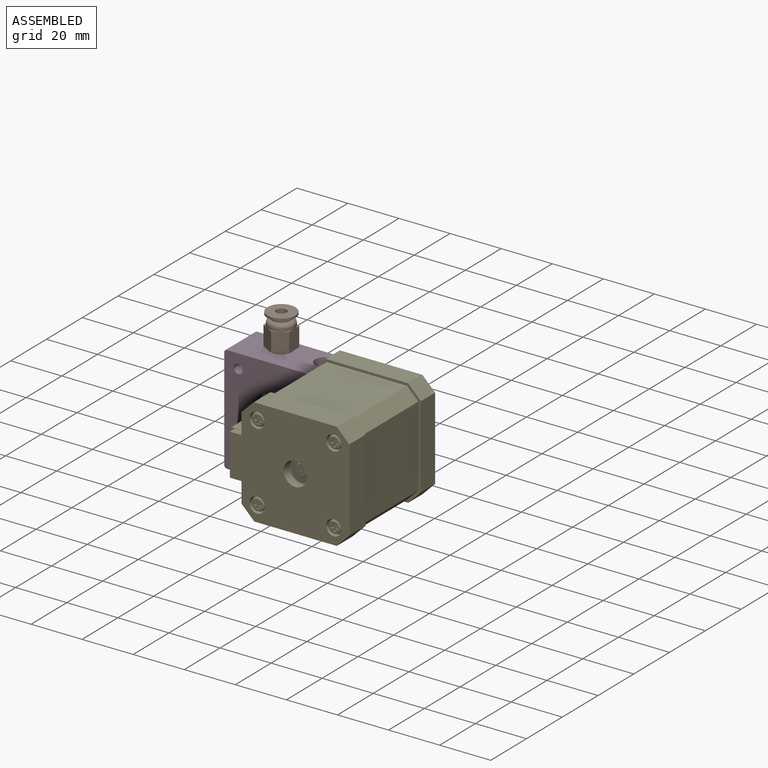
[diagram: assembled view]
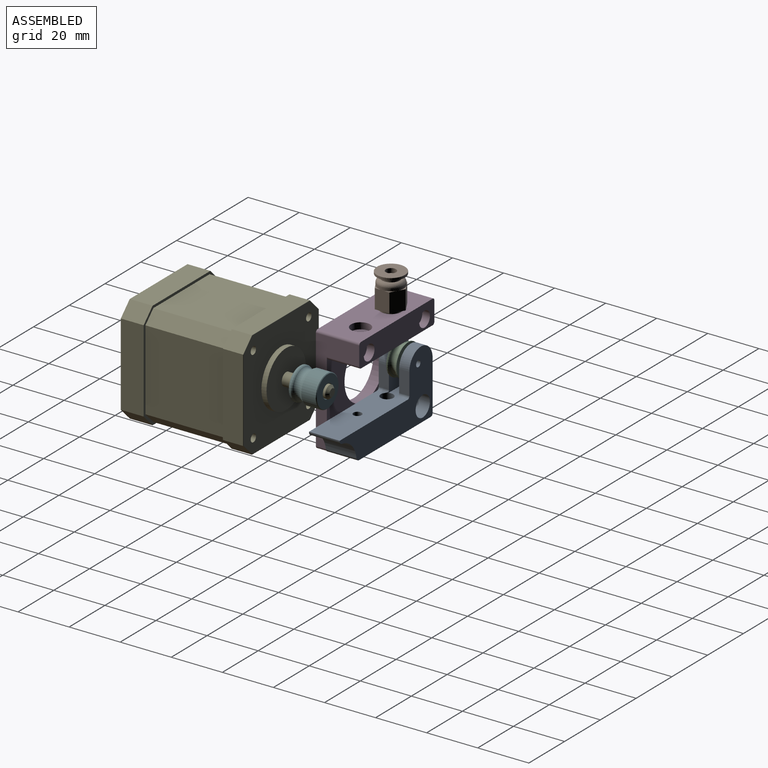
[diagram: assembled view, second angle]
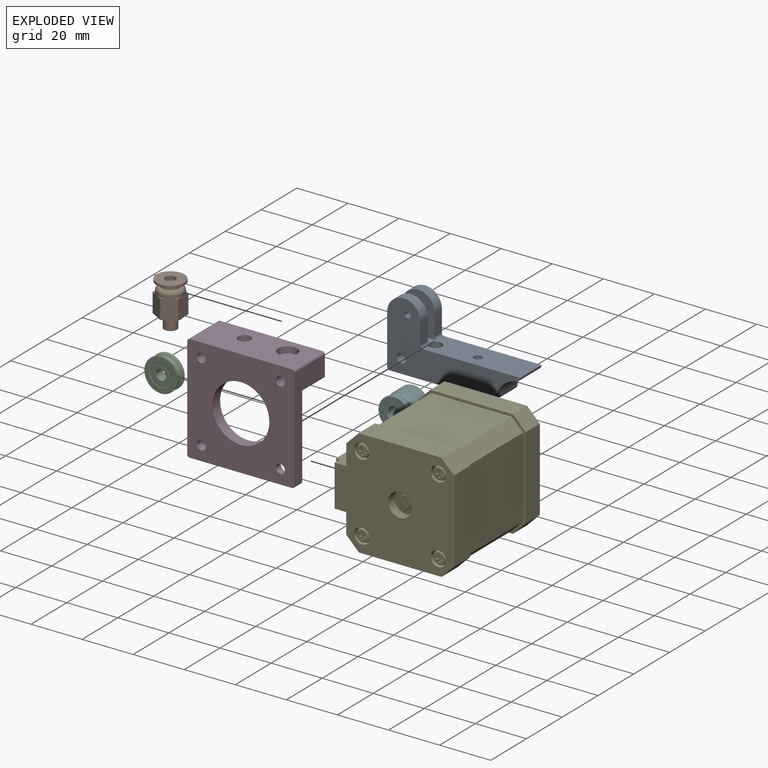
[diagram: exploded view]
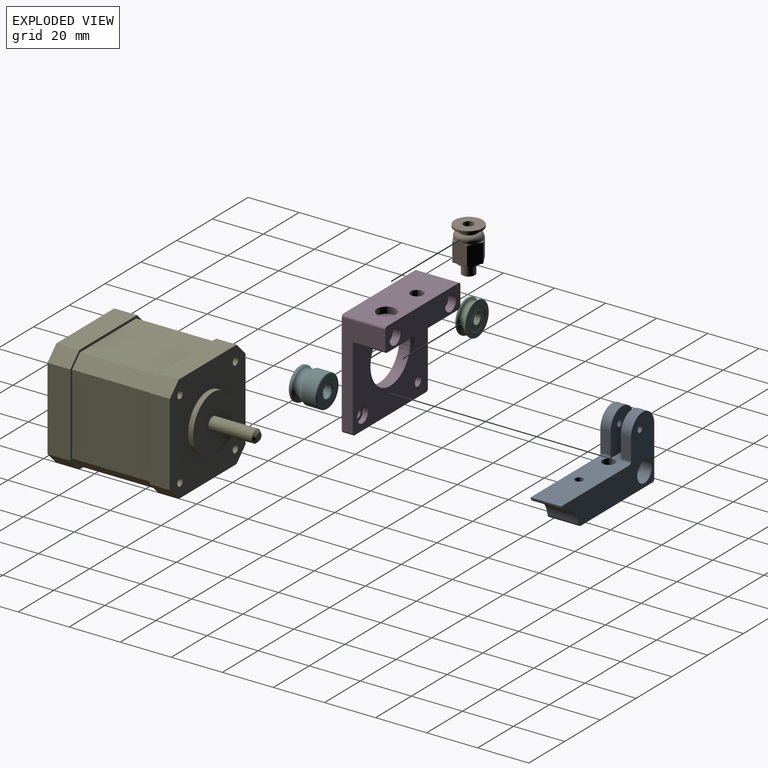
[diagram: exploded view, second angle]
ASSEMBLY  parts=6 mates=4
PART A: 25 faces, bbox 52x12x27.1 mm
  f0: cylinder r=4mm len=8mm, axis (0,1,0), area 163.4mm2, adj f3,f5
  f1: plane 8.5x4mm, normal (1,0,0), area 34mm2, adj f4,f5,f6,f7
  f2: cylinder r=1.23mm len=4mm, axis (0,-1,0), area 30.9mm2, adj f5,f7
  f3: plane 8.15x8.07mm, normal (0,-1,0), area 40.6mm2, adj f0,f9
  f4: cylinder r=6.5mm len=13mm, axis (0,1,0), area 81.7mm2, adj f1,f5,f7,f16
  f5: plane 52x27.12mm, normal (0,-1,0), area 635.2mm2, adj f0,f1,f2,f4,f6,f10,f11,f12
  f6: cylinder r=1mm len=4mm, axis (0,1,0), area 6.3mm2, adj f1,f5,f7,f20
  f7: plane 16.12x14mm, normal (0,1,0), area 185.3mm2, adj f1,f2,f4,f6,f16,f20
  f8: cylinder r=1.62mm len=11mm, axis (0,0,-1), area 112mm2, adj f11,f20
  f9: cylinder r=1.75mm len=5.5mm, axis (0,1,0), area 60.5mm2, adj f3,f21
  f10: cylinder r=1mm len=12mm, axis (0,1,0), area 18.8mm2, adj f5,f11,f16,f21
  f11: plane 40.1x12mm, normal (0,0,1), area 454mm2, adj f5,f8,f10,f12,f19,f21
  f12: cylinder r=1.5mm len=12mm, axis (0,1,0), area 25.8mm2, adj f5,f11,f13,f21
  f13: cylinder r=9.5mm len=12mm, axis (0,1,0), area 147.9mm2, adj f5,f12,f14,f21
  f14: cylinder r=1.5mm len=12mm, axis (0,-1,0), area 25.8mm2, adj f5,f13,f15,f21
  f15: plane 12x0.1mm, normal (1,0,0), area 1.2mm2, adj f5,f14,f20,f21
  f16: plane 19.5x12mm, normal (-1,0,0), area 196mm2, adj f4,f5,f7,f10,f17,f20,f21,f23
  f17: cylinder r=6.5mm len=13mm, axis (0,1,0), area 81.7mm2, adj f16,f21,f22,f23
  f18: cylinder r=1.23mm len=4mm, axis (0,-1,0), area 30.9mm2, adj f21,f23
  f19: cylinder r=2.46mm len=11.33mm, axis (0,0,-1), area 170.1mm2, adj f11,f20,f23,f24
  f20: plane 52x12mm, normal (0,0,-1), area 485.2mm2, adj f5,f6,f7,f8,f15,f16,f19,f21
  f21: plane 52x27.12mm, normal (0,1,0), area 675.8mm2, adj f9,f10,f11,f12,f13,f14,f15,f16
  f22: plane 8.5x4mm, normal (1,0,0), area 34mm2, adj f17,f21,f23,f24
  f23: plane 16.12x13.25mm, normal (0,-1,0), area 185.3mm2, adj f16,f17,f18,f19,f20,f22,f24
  f24: cylinder r=1mm len=4mm, axis (0,1,0), area 5.9mm2, adj f19,f20,f21,f22,f23
PART B: 37 faces, bbox 11.9x11.9x17.5 mm
  f0: plane 4.07x4mm, normal (0,0,1), area 12.6mm2, adj f1
  f1: cylinder r=2mm len=4mm, axis (0,0,-1), area 22mm2, adj f0,f2
  f2: plane 11x10.9mm, normal (0,0,1), area 79mm2, adj f1,f3
  f3: torus R=5.4mm, axis (0,0,1), area 5.4mm2, adj f2,f4
  f4: cylinder r=5.5mm len=11mm, axis (0,0,1), area 27.6mm2, adj f3,f5
  f5: torus R=5.4mm, axis (0,0,-1), area 5.4mm2, adj f4,f6
  f6: plane 11x10.8mm, normal (0,0,-1), area 72mm2, adj f5,f7
  f7: cylinder r=2.5mm len=5mm, axis (0,0,1), area 11.8mm2, adj f6,f8
  f8: plane 7.13x7mm, normal (0,0,1), area 18.8mm2, adj f7,f9
  f9: cylinder r=3.5mm len=7mm, axis (0,0,1), area 16.5mm2, adj f8,f10
  f10: torus R=3.5mm, axis (0,0,1), area 66mm2, adj f9,f11
  f11: cylinder r=5mm len=10mm, axis (0,0,1), area 31.4mm2, adj f10,f12,f13,f14,f15,f16,f17
  f12: plane 5x1.41mm, normal (0,0,1), area 1.3mm2, adj f11,f18,f19,f20
  f13: plane 4.33x2.5mm, normal (0,0,1), area 1.3mm2, adj f11,f20,f21,f22
  f14: plane 4.33x2.5mm, normal (0,0,1), area 1.3mm2, adj f11,f22,f23,f24
  f15: plane 5x1.41mm, normal (0,0,1), area 1.3mm2, adj f11,f24,f25,f26
  f16: plane 4.33x2.5mm, normal (0,0,1), area 1.3mm2, adj f11,f26,f27,f28
  f17: plane 4.33x2.5mm, normal (0,0,1), area 1.3mm2, adj f11,f18,f28,f29
  f18: plane 7.5x4.8mm, normal (-0.5,-0.87,0), area 41.6mm2, adj f12,f17,f19,f29,f30
  f19: cylinder r=0.2mm len=7.5mm, axis (0,0,1), area 1.6mm2, adj f12,f18,f20,f30
  f20: plane 7.5x4.8mm, normal (0.5,-0.87,0), area 41.6mm2, adj f12,f13,f19,f21,f30
  f21: cylinder r=0.2mm len=7.5mm, axis (0,0,1), area 1.6mm2, adj f13,f20,f22,f30
  f22: plane 7.5x5.54mm, normal (1,0,0), area 41.6mm2, adj f13,f14,f21,f23,f30
  f23: cylinder r=0.2mm len=7.5mm, axis (0,0,1), area 1.6mm2, adj f14,f22,f24,f30
  f24: plane 7.5x4.8mm, normal (0.5,0.87,0), area 41.6mm2, adj f14,f15,f23,f25,f30
  f25: cylinder r=0.2mm len=7.5mm, axis (0,0,1), area 1.6mm2, adj f15,f24,f26,f30
  f26: plane 7.5x4.8mm, normal (-0.5,0.87,0), area 41.6mm2, adj f15,f16,f25,f27,f30
  f27: cylinder r=0.2mm len=7.5mm, axis (0,0,1), area 1.6mm2, adj f16,f26,f28,f30
  f28: plane 7.5x5.54mm, normal (-1,0,0), area 41.6mm2, adj f16,f17,f27,f29,f30
  f29: cylinder r=0.2mm len=7.5mm, axis (0,0,1), area 1.6mm2, adj f17,f18,f28,f30
  f30: plane 11.49x10mm, normal (0,0,-1), area 36.3mm2, adj f18,f19,f20,f21,f22,f23,f24,f25
  f31: cylinder r=4mm len=8mm, axis (0,0,-1), area 25.1mm2, adj f30,f32
  f32: plane 8.15x8.07mm, normal (0,0,-1), area 30.6mm2, adj f31,f33
  f33: cylinder r=2.5mm len=5mm, axis (0,0,-1), area 62.8mm2, adj f32,f34
  f34: plane 5.09x5.05mm, normal (0,0,-1), area 7.1mm2, adj f33,f35
  f35: cylinder r=2mm len=15mm, axis (0,0,-1), area 188.5mm2, adj f34,f36
  f36: plane 4.07x4mm, normal (0,0,-1), area 12.6mm2, adj f35
PART C: 16 faces, bbox 14.1x4x14.1 mm
  f0: plane 6.11x6mm, normal (0,-1,0), area 15.7mm2, adj f1,f2
  f1: cylinder r=2mm len=4mm, axis (0,-1,0), area 50.3mm2, adj f0,f3
  f2: cylinder r=3mm len=6mm, axis (0,1,0), area 1.9mm2, adj f0,f4
  f3: plane 6.11x6mm, normal (0,1,0), area 15.7mm2, adj f1,f5
  f4: plane 8.66x8.58mm, normal (0,-1,0), area 28.5mm2, adj f2,f6
  f5: cylinder r=3mm len=6mm, axis (0,-1,0), area 1.9mm2, adj f3,f7
  f6: torus R=4.55mm, axis (0,-1,0), area 8.9mm2, adj f4,f8
  f7: plane 8.66x8.5mm, normal (0,1,0), area 28.5mm2, adj f5,f9
  f8: plane 13.24x13.12mm, normal (0,-1,0), area 67.7mm2, adj f6,f10
  f9: torus R=4.55mm, axis (0,1,0), area 8.9mm2, adj f7,f11
  f10: cylinder r=6.5mm len=13mm, axis (0,1,0), area 13.2mm2, adj f8,f12
  f11: plane 13.24x13.12mm, normal (0,1,0), area 67.7mm2, adj f9,f13
  f12: torus R=6mm, axis (0,-1,0), area 25.7mm2, adj f10,f14
  f13: cylinder r=6.5mm len=13mm, axis (0,-1,0), area 13.2mm2, adj f11,f15
  f14: torus R=6.5mm, axis (0,-1,0), area 112mm2, adj f12,f15
  f15: torus R=6mm, axis (0,-1,0), area 25.7mm2, adj f13,f14
PART D: 29 faces, bbox 42x42x17 mm
  f0: plane 7.64x7.57mm, normal (0,1,0), area 35.9mm2, adj f1,f7
  f1: cylinder r=1.62mm len=6.9mm, axis (0,-1,0), area 70.3mm2, adj f0,f10
  f2: cylinder r=3mm len=6mm, axis (0,0,-1), area 56.5mm2, adj f6,f13
  f3: cylinder r=3mm len=6mm, axis (0,0,-1), area 56.5mm2, adj f5,f13
  f4: plane 6.11x6.06mm, normal (0,0,1), area 18.7mm2, adj f11,f15
  f5: plane 6.11x6.06mm, normal (0,0,1), area 18.7mm2, adj f3,f16
  f6: plane 6.11x6.06mm, normal (0,0,1), area 18.7mm2, adj f2,f17
  f7: cylinder r=3.75mm len=7.5mm, axis (0,-1,0), area 58.9mm2, adj f0,f21
  f8: cylinder r=2.46mm len=9.4mm, axis (0,-1,0), area 145.2mm2, adj f10,f21
  f9: cylinder r=1mm len=12.7mm, axis (0,0,1), area 19.9mm2, adj f10,f13,f19,f24
  f10: plane 40x12.7mm, normal (0,-1,0), area 480.8mm2, adj f1,f8,f9,f12,f13,f24
  f11: cylinder r=3mm len=6mm, axis (0,0,-1), area 37.7mm2, adj f4,f24
  f12: cylinder r=1mm len=12.7mm, axis (0,0,1), area 19.9mm2, adj f10,f13,f24,f25
  f13: plane 42x9.4mm, normal (0,0,1), area 337.4mm2, adj f2,f3,f9,f10,f12,f19,f20,f21
  f14: cylinder r=1.75mm len=4.3mm, axis (0,0,-1), area 47.3mm2, adj f24,f26
  f15: cylinder r=1.75mm len=3.5mm, axis (0,0,-1), area 25.3mm2, adj f4,f26
  f16: cylinder r=1.75mm len=14mm, axis (0,0,-1), area 153.9mm2, adj f5,f26
  f17: cylinder r=1.75mm len=14mm, axis (0,0,-1), area 153.9mm2, adj f6,f26
  f18: cylinder r=11.15mm len=22.3mm, axis (0,0,-1), area 301.2mm2, adj f24,f26
  f19: plane 40x17mm, normal (1,0,0), area 266mm2, adj f9,f13,f20,f23,f24,f26
  f20: cylinder r=1mm len=17mm, axis (0,0,1), area 26.7mm2, adj f13,f19,f21,f26
  f21: plane 40x17mm, normal (0,1,0), area 616.8mm2, adj f7,f8,f13,f20,f22,f26
  f22: cylinder r=1mm len=17mm, axis (0,0,1), area 26.7mm2, adj f13,f21,f25,f26
  f23: cylinder r=1mm len=4.3mm, axis (0,0,1), area 6.8mm2, adj f19,f24,f26,f27
  f24: plane 42x33.6mm, normal (0,0,1), area 940.7mm2, adj f9,f10,f11,f12,f14,f18,f19,f23
  f25: plane 40x17mm, normal (-1,0,0), area 266mm2, adj f12,f13,f22,f24,f26,f28
  f26: plane 42x42mm, normal (0,0,-1), area 1334.1mm2, adj f14,f15,f16,f17,f18,f19,f20,f21
  f27: plane 40x4.3mm, normal (0,-1,0), area 172mm2, adj f23,f24,f26,f28
  f28: cylinder r=1mm len=4.3mm, axis (0,0,1), area 6.8mm2, adj f24,f25,f26,f27
PART E: 226 faces, bbox 48.7x42.7x68.4 mm
  f0: plane 3x3mm, normal (0,0,-1), area 5mm2, adj f5,f6,f7,f8,f9,f10,f11,f12
  f1: plane 3x3mm, normal (0,0,-1), area 5mm2, adj f17,f18,f19,f20,f21,f22,f23,f24
  f2: plane 3x3mm, normal (0,0,-1), area 5mm2, adj f29,f30,f31,f32,f33,f34,f35,f36
  f3: plane 3x3mm, normal (0,0,-1), area 5mm2, adj f41,f42,f43,f44,f45,f46,f47,f48
  f4: plane 0.58x0.57mm, normal (0,0,-1), area 0.3mm2, adj f53
  f5: plane 1x0.6mm, normal (-1,0,0), area 0.6mm2, adj f0,f6,f16,f54
  f6: plane 1x0.6mm, normal (0,1,0), area 0.6mm2, adj f0,f5,f7,f54
  f7: plane 1x0.6mm, normal (1,0,0), area 0.6mm2, adj f0,f6,f8,f54
  f8: plane 1x0.6mm, normal (0,1,0), area 0.6mm2, adj f0,f7,f9,f54
  f9: plane 1x0.6mm, normal (1,0,0), area 0.6mm2, adj f0,f8,f10,f54
  f10: plane 1x0.6mm, normal (0,-1,0), area 0.6mm2, adj f0,f9,f11,f54
  f11: plane 1x0.6mm, normal (1,0,0), area 0.6mm2, adj f0,f10,f12,f54
  f12: plane 1x0.6mm, normal (0,-1,0), area 0.6mm2, adj f0,f11,f13,f54
  f13: plane 1x0.6mm, normal (-1,0,0), area 0.6mm2, adj f0,f12,f14,f54
  f14: plane 1x0.6mm, normal (0,-1,0), area 0.6mm2, adj f0,f13,f15,f54
  f15: plane 1x0.6mm, normal (-1,0,0), area 0.6mm2, adj f0,f14,f16,f54
  f16: plane 1x0.6mm, normal (0,1,0), area 0.6mm2, adj f0,f5,f15,f54
  f17: plane 1x0.6mm, normal (1,0,0), area 0.6mm2, adj f1,f18,f28,f55
  f18: plane 1x0.6mm, normal (0,-1,0), area 0.6mm2, adj f1,f17,f19,f55
  f19: plane 1x0.6mm, normal (1,0,0), area 0.6mm2, adj f1,f18,f20,f55
  f20: plane 1x0.6mm, normal (0,-1,0), area 0.6mm2, adj f1,f19,f21,f55
  f21: plane 1x0.6mm, normal (-1,0,0), area 0.6mm2, adj f1,f20,f22,f55
  f22: plane 1x0.6mm, normal (0,-1,0), area 0.6mm2, adj f1,f21,f23,f55
  f23: plane 1x0.6mm, normal (-1,0,0), area 0.6mm2, adj f1,f22,f24,f55
  f24: plane 1x0.6mm, normal (0,1,0), area 0.6mm2, adj f1,f23,f25,f55
  f25: plane 1x0.6mm, normal (-1,0,0), area 0.6mm2, adj f1,f24,f26,f55
  f26: plane 1x0.6mm, normal (0,1,0), area 0.6mm2, adj f1,f25,f27,f55
  f27: plane 1x0.6mm, normal (1,0,0), area 0.6mm2, adj f1,f26,f28,f55
  f28: plane 1x0.6mm, normal (0,1,0), area 0.6mm2, adj f1,f17,f27,f55
  f29: plane 1x0.6mm, normal (-1,0,0), area 0.6mm2, adj f2,f30,f40,f56
  f30: plane 1x0.6mm, normal (0,1,0), area 0.6mm2, adj f2,f29,f31,f56
  f31: plane 1x0.6mm, normal (-1,0,0), area 0.6mm2, adj f2,f30,f32,f56
  f32: plane 1x0.6mm, normal (0,1,0), area 0.6mm2, adj f2,f31,f33,f56
  f33: plane 1x0.6mm, normal (1,0,0), area 0.6mm2, adj f2,f32,f34,f56
  f34: plane 1x0.6mm, normal (0,1,0), area 0.6mm2, adj f2,f33,f35,f56
  f35: plane 1x0.6mm, normal (1,0,0), area 0.6mm2, adj f2,f34,f36,f56
  f36: plane 1x0.6mm, normal (0,-1,0), area 0.6mm2, adj f2,f35,f37,f56
  f37: plane 1x0.6mm, normal (1,0,0), area 0.6mm2, adj f2,f36,f38,f56
  f38: plane 1x0.6mm, normal (0,-1,0), area 0.6mm2, adj f2,f37,f39,f56
  f39: plane 1x0.6mm, normal (-1,0,0), area 0.6mm2, adj f2,f38,f40,f56
  f40: plane 1x0.6mm, normal (0,-1,0), area 0.6mm2, adj f2,f29,f39,f56
  f41: plane 1x0.6mm, normal (1,0,0), area 0.6mm2, adj f3,f42,f52,f57
  f42: plane 1x0.6mm, normal (0,-1,0), area 0.6mm2, adj f3,f41,f43,f57
  f43: plane 1x0.6mm, normal (-1,0,0), area 0.6mm2, adj f3,f42,f44,f57
  f44: plane 1x0.6mm, normal (0,-1,0), area 0.6mm2, adj f3,f43,f45,f57
  f45: plane 1x0.6mm, normal (-1,0,0), area 0.6mm2, adj f3,f44,f46,f57
  f46: plane 1x0.6mm, normal (0,1,0), area 0.6mm2, adj f3,f45,f47,f57
  f47: plane 1x0.6mm, normal (-1,0,0), area 0.6mm2, adj f3,f46,f48,f57
  f48: plane 1x0.6mm, normal (0,1,0), area 0.6mm2, adj f3,f47,f49,f57
  f49: plane 1x0.6mm, normal (1,0,0), area 0.6mm2, adj f3,f48,f50,f57
  f50: plane 1x0.6mm, normal (0,1,0), area 0.6mm2, adj f3,f49,f51,f57
  f51: plane 1x0.6mm, normal (1,0,0), area 0.6mm2, adj f3,f50,f52,f57
  f52: plane 1x0.6mm, normal (0,-1,0), area 0.6mm2, adj f3,f41,f51,f57
  f53: cylinder r=0.28mm len=0.6mm, axis (0,0,-1), area 1.1mm2, adj f4,f58
  f54: plane 3.97x3.9mm, normal (0,0,-1), area 6.9mm2, adj f5,f6,f7,f8,f9,f10,f11,f12
  f55: plane 3.97x3.9mm, normal (0,0,-1), area 6.9mm2, adj f17,f18,f19,f20,f21,f22,f23,f24
  f56: plane 3.97x3.94mm, normal (0,0,-1), area 6.9mm2, adj f29,f30,f31,f32,f33,f34,f35,f36
  f57: plane 3.97x3.94mm, normal (0,0,-1), area 6.9mm2, adj f41,f42,f43,f44,f45,f46,f47,f48
  f58: plane 4.69x4.6mm, normal (0,0,-1), area 16.4mm2, adj f53,f63
  f59: torus R=1.95mm, axis (0,0,-1), area 11.2mm2, adj f54,f70
  f60: torus R=1.95mm, axis (0,0,1), area 11.2mm2, adj f55,f71
  f61: torus R=1.95mm, axis (0,0,1), area 11.2mm2, adj f56,f72
  f62: torus R=1.95mm, axis (0,0,-1), area 11.2mm2, adj f57,f73
  f63: cone r=2.4mm half-angle=45deg, axis (0,0,1), area 4.3mm2, adj f58,f74
  f64: plane 0.34x0.34mm, normal (-1,0,0), area 0.1mm2, adj f75,f76,f77,f78
  f65: plane 0.34x0.34mm, normal (-1,0,0), area 0.1mm2, adj f79,f80,f81,f82
  f66: plane 0.34x0.34mm, normal (-1,0,0), area 0.1mm2, adj f83,f84,f85,f86
  f67: plane 0.34x0.34mm, normal (-1,0,0), area 0.1mm2, adj f87,f88,f89,f90
  f68: plane 0.34x0.34mm, normal (-1,0,0), area 0.1mm2, adj f91,f92,f93,f94
  f69: plane 0.34x0.34mm, normal (-1,0,0), area 0.1mm2, adj f95,f96,f97,f98
  f70: cylinder r=2.45mm len=4.9mm, axis (0,0,-1), area 18.5mm2, adj f59,f99
  f71: cylinder r=2.45mm len=4.9mm, axis (0,0,-1), area 18.5mm2, adj f60,f100
  f72: cylinder r=2.45mm len=4.9mm, axis (0,0,-1), area 18.5mm2, adj f61,f101
  f73: cylinder r=2.45mm len=4.9mm, axis (0,0,-1), area 18.5mm2, adj f62,f102
  f74: cylinder r=2.5mm len=5mm, axis (0,0,-1), area 6.3mm2, adj f63,f103
  f75: plane 0.5x0.22mm, normal (-0.34,0,-0.94), area 0.1mm2, adj f64,f76,f78,f104
  f76: plane 0.5x0.22mm, normal (-0.34,-0.94,0), area 0.1mm2, adj f64,f75,f77,f105
  f77: plane 0.5x0.22mm, normal (-0.34,0,0.94), area 0.1mm2, adj f64,f76,f78,f106
  f78: plane 0.5x0.22mm, normal (-0.34,0.94,0), area 0.1mm2, adj f64,f75,f77,f107
  f79: plane 0.5x0.22mm, normal (-0.34,0,-0.94), area 0.1mm2, adj f65,f80,f82,f108
  f80: plane 0.5x0.22mm, normal (-0.34,-0.94,0), area 0.1mm2, adj f65,f79,f81,f109
  f81: plane 0.5x0.22mm, normal (-0.34,0,0.94), area 0.1mm2, adj f65,f80,f82,f110
  f82: plane 0.5x0.22mm, normal (-0.34,0.94,0), area 0.1mm2, adj f65,f79,f81,f111
  f83: plane 0.5x0.22mm, normal (-0.34,0,-0.94), area 0.1mm2, adj f66,f84,f86,f112
  f84: plane 0.5x0.22mm, normal (-0.34,-0.94,0), area 0.1mm2, adj f66,f83,f85,f113
  f85: plane 0.5x0.22mm, normal (-0.34,0,0.94), area 0.1mm2, adj f66,f84,f86,f114
  f86: plane 0.5x0.22mm, normal (-0.34,0.94,0), area 0.1mm2, adj f66,f83,f85,f115
  f87: plane 0.5x0.22mm, normal (-0.34,0,0.94), area 0.1mm2, adj f67,f88,f90,f116
  f88: plane 0.5x0.22mm, normal (-0.34,0.94,0), area 0.1mm2, adj f67,f87,f89,f117
  f89: plane 0.5x0.22mm, normal (-0.34,0,-0.94), area 0.1mm2, adj f67,f88,f90,f118
  f90: plane 0.5x0.22mm, normal (-0.34,-0.94,0), area 0.1mm2, adj f67,f87,f89,f119
  f91: plane 0.5x0.22mm, normal (-0.34,0,0.94), area 0.1mm2, adj f68,f92,f94,f120
  f92: plane 0.5x0.22mm, normal (-0.34,0.94,0), area 0.1mm2, adj f68,f91,f93,f121
  f93: plane 0.5x0.22mm, normal (-0.34,0,-0.94), area 0.1mm2, adj f68,f92,f94,f122
  f94: plane 0.5x0.22mm, normal (-0.34,-0.94,0), area 0.1mm2, adj f68,f91,f93,f123
  f95: plane 0.5x0.22mm, normal (-0.34,-0.94,0), area 0.1mm2, adj f69,f96,f98,f124
  f96: plane 0.5x0.22mm, normal (-0.34,0,0.94), area 0.1mm2, adj f69,f95,f97,f125
  f97: plane 0.5x0.22mm, normal (-0.34,0.94,0), area 0.1mm2, adj f69,f96,f98,f126
  f98: plane 0.5x0.22mm, normal (-0.34,0,-0.94), area 0.1mm2, adj f69,f95,f97,f127
  f99: plane 6.11x6mm, normal (0,0,-1), area 9.4mm2, adj f70,f128
  f100: plane 6.11x6mm, normal (0,0,-1), area 9.4mm2, adj f71,f129
  f101: plane 6.11x6mm, normal (0,0,-1), area 9.4mm2, adj f72,f130
  f102: plane 6.11x6mm, normal (0,0,-1), area 9.4mm2, adj f73,f131
  f103: plane 9.36x9.19mm, normal (0,0,-1), area 46.7mm2, adj f74,f132
  f104: plane 4.38x0.5mm, normal (0,0,-1), area 2.2mm2, adj f75,f105,f107,f133
  f105: plane 4.38x0.5mm, normal (0,-1,0), area 2.2mm2, adj f76,f104,f106,f133
  f106: plane 4.38x0.5mm, normal (0,0,1), area 2.2mm2, adj f77,f105,f107,f133
  f107: plane 4.38x0.5mm, normal (0,1,0), area 2.2mm2, adj f78,f104,f106,f133
  f108: plane 4.38x0.5mm, normal (0,0,-1), area 2.2mm2, adj f79,f109,f111,f133
  f109: plane 4.38x0.5mm, normal (0,-1,0), area 2.2mm2, adj f80,f108,f110,f133
  f110: plane 4.38x0.5mm, normal (0,0,1), area 2.2mm2, adj f81,f109,f111,f133
  f111: plane 4.38x0.5mm, normal (0,1,0), area 2.2mm2, adj f82,f108,f110,f133
  f112: plane 4.38x0.5mm, normal (0,0,-1), area 2.2mm2, adj f83,f113,f115,f133
  f113: plane 4.38x0.5mm, normal (0,-1,0), area 2.2mm2, adj f84,f112,f114,f133
  f114: plane 4.38x0.5mm, normal (0,0,1), area 2.2mm2, adj f85,f113,f115,f133
  f115: plane 4.38x0.5mm, normal (0,1,0), area 2.2mm2, adj f86,f112,f114,f133
  f116: plane 4.38x0.5mm, normal (0,0,1), area 2.2mm2, adj f87,f117,f119,f133
  f117: plane 4.38x0.5mm, normal (0,1,0), area 2.2mm2, adj f88,f116,f118,f133
  f118: plane 4.38x0.5mm, normal (0,0,-1), area 2.2mm2, adj f89,f117,f119,f133
  f119: plane 4.38x0.5mm, normal (0,-1,0), area 2.2mm2, adj f90,f116,f118,f133
  f120: plane 4.38x0.5mm, normal (0,0,1), area 2.2mm2, adj f91,f121,f123,f133
  f121: plane 4.38x0.5mm, normal (0,1,0), area 2.2mm2, adj f92,f120,f122,f133
  f122: plane 4.38x0.5mm, normal (0,0,-1), area 2.2mm2, adj f93,f121,f123,f133
  f123: plane 4.38x0.5mm, normal (0,-1,0), area 2.2mm2, adj f94,f120,f122,f133
  f124: plane 4.38x0.5mm, normal (0,-1,0), area 2.2mm2, adj f95,f125,f127,f133
  f125: plane 4.38x0.5mm, normal (0,0,1), area 2.2mm2, adj f96,f124,f126,f133
  f126: plane 4.38x0.5mm, normal (0,1,0), area 2.2mm2, adj f97,f125,f127,f133
  f127: plane 4.38x0.5mm, normal (0,0,-1), area 2.2mm2, adj f98,f124,f126,f133
  f128: cylinder r=3mm len=6mm, axis (0,0,1), area 37.7mm2, adj f99,f134
  f129: cylinder r=3mm len=6mm, axis (0,0,1), area 37.7mm2, adj f100,f134
  f130: cylinder r=3mm len=6mm, axis (0,0,1), area 37.7mm2, adj f101,f134
  f131: cylinder r=3mm len=6mm, axis (0,0,1), area 37.7mm2, adj f102,f134
  f132: cylinder r=4.59mm len=9.19mm, axis (0,0,1), area 102.5mm2, adj f103,f134
  f133: plane 15.1x4.8mm, normal (-1,0,0), area 71mm2, adj f104,f105,f106,f107,f108,f109,f110,f111
  f134: plane 46.7x42.1mm, normal (0,0,-1), area 1619.1mm2, adj f128,f129,f130,f131,f132,f135,f146,f147
  f135: plane 16.3x3mm, normal (-1,0,0), area 48.9mm2, adj f134,f141,f146,f156
  f136: plane 0.1x0.1mm, normal (1,0,0), area 0mm2, adj f158,f159,f161
  f137: plane 4.8x4.75mm, normal (0,1,0), area 22.8mm2, adj f133,f138,f140,f165
  f138: plane 15.1x4.75mm, normal (0,0,1), area 71.7mm2, adj f133,f137,f139,f165
  f139: plane 4.8x4.75mm, normal (0,-1,0), area 22.8mm2, adj f133,f138,f140,f165
  f140: plane 15.1x4.75mm, normal (0,0,-1), area 37.5mm2, adj f133,f137,f139,f162,f163,f164,f165
  f141: plane 16.3x1.5mm, normal (0,0,-1), area 24.5mm2, adj f135,f161,f165,f166
  f142: plane 0.1x0.1mm, normal (1,0,0), area 0mm2, adj f143,f144,f166
  f143: plane 4.5x0.1mm, normal (0,0,-1), area 0.4mm2, adj f142,f144,f166,f168
  f144: plane 4.5x0.1mm, normal (0,-1,0), area 0.4mm2, adj f142,f143,f145,f168
  f145: plane 4.5x0.1mm, normal (0,0,1), area 0.4mm2, adj f144,f146,f168
  f146: plane 4.6x3mm, normal (0,-1,0), area 13.5mm2, adj f134,f135,f145,f147,f168
  f147: cylinder r=0.1mm len=8mm, axis (0,1,0), area 1.3mm2, adj f134,f146,f148,f168
  f148: cylinder r=0.1mm len=5.07mm, axis (0.71,-0.71,0), area 1.1mm2, adj f134,f147,f149,f169
  f149: cylinder r=0.1mm len=32.3mm, axis (-1,0,0), area 5.1mm2, adj f134,f148,f150,f170
  f150: cylinder r=0.1mm len=5.07mm, axis (0.71,0.71,0), area 1.1mm2, adj f134,f149,f151,f171
  f151: cylinder r=0.1mm len=32.3mm, axis (0,-1,0), area 5.1mm2, adj f134,f150,f152,f172
  f152: cylinder r=0.1mm len=5.07mm, axis (-0.71,0.71,0), area 1.1mm2, adj f134,f151,f153,f173
  f153: cylinder r=0.1mm len=32.3mm, axis (1,0,0), area 5.1mm2, adj f134,f152,f154,f174
  f154: cylinder r=0.1mm len=5.07mm, axis (-0.71,-0.71,0), area 1.1mm2, adj f134,f153,f155,f175
  f155: cylinder r=0.1mm len=8mm, axis (0,1,0), area 1.3mm2, adj f134,f154,f156,f176
  f156: plane 4.6x3mm, normal (0,1,0), area 13.5mm2, adj f134,f135,f155,f157,f176
  f157: plane 4.5x0.1mm, normal (0,0,1), area 0.4mm2, adj f156,f158,f176
  f158: plane 4.5x0.1mm, normal (0,1,0), area 0.4mm2, adj f136,f157,f159,f176
  f159: plane 4.5x0.1mm, normal (0,0,-1), area 0.4mm2, adj f136,f158,f161,f176
  f160: plane 0.1x0.05mm, normal (1,0,0), area 0mm2, adj f161,f178,f179,f180
  f161: plane 6x6mm, normal (0,1,0), area 35.6mm2, adj f136,f141,f159,f160,f165,f176,f180
  f162: plane 4.28x0.6mm, normal (0,-1,0), area 2.6mm2, adj f140,f163,f165,f180
  f163: plane 8x0.6mm, normal (-1,0,0), area 4.8mm2, adj f140,f162,f164,f180
  f164: plane 4.28x0.6mm, normal (0,1,0), area 2.6mm2, adj f140,f163,f165,f180
  f165: plane 16.3x6mm, normal (-1,0,0), area 20.5mm2, adj f137,f138,f139,f140,f141,f161,f162,f164
  f166: plane 6x6mm, normal (0,-1,0), area 35.6mm2, adj f141,f142,f143,f165,f167,f168,f180
  f167: plane 0.1x0.05mm, normal (1,0,0), area 0mm2, adj f166,f180,f181,f182
  f168: plane 8.9x8.1mm, normal (-1,0,0), area 71.2mm2, adj f143,f144,f145,f146,f147,f166,f169,f182
  f169: plane 8.9x5mm, normal (-0.71,-0.71,0), area 62.9mm2, adj f148,f168,f170,f184
  f170: plane 32.3x8.9mm, normal (0,-1,0), area 287.5mm2, adj f149,f169,f171,f184
  f171: plane 8.9x5mm, normal (0.71,-0.71,0), area 62.9mm2, adj f150,f170,f172,f184
  f172: plane 32.3x8.9mm, normal (1,0,0), area 287.5mm2, adj f151,f171,f173,f184
  f173: plane 8.9x5mm, normal (0.71,0.71,0), area 62.9mm2, adj f152,f172,f174,f184
  f174: plane 32.3x8.9mm, normal (0,1,0), area 287.5mm2, adj f153,f173,f175,f184
  f175: plane 8.9x5mm, normal (-0.71,0.71,0), area 62.9mm2, adj f154,f174,f176,f184
  f176: plane 8.9x8.1mm, normal (-1,0,0), area 71.2mm2, adj f155,f156,f157,f158,f159,f161,f175,f177
  f177: plane 1x0.1mm, normal (0,-1,0), area 0.1mm2, adj f176,f178,f184,f190
  f178: plane 1x0.1mm, normal (0,0,1), area 0.1mm2, adj f160,f176,f177,f179,f190
  f179: plane 1x0.1mm, normal (0,1,0), area 0.1mm2, adj f160,f178,f180,f190
  f180: plane 16.3x7mm, normal (0,0,1), area 79.8mm2, adj f160,f161,f162,f163,f164,f165,f166,f167
  f181: plane 1x0.1mm, normal (0,-1,0), area 0.1mm2, adj f167,f180,f182,f190
  f182: plane 1x0.1mm, normal (0,0,1), area 0.1mm2, adj f167,f168,f181,f183,f190
  f183: plane 1x0.1mm, normal (0,1,0), area 0.1mm2, adj f168,f182,f184,f190
  f184: plane 42.3x42.3mm, normal (0,0,1), area 137.8mm2, adj f168,f169,f170,f171,f172,f173,f174,f175
  f185: plane 31x4.41mm, normal (0.71,0.71,0), area 193.5mm2, adj f184,f186,f192,f193
  f186: plane 31.47x31mm, normal (1,0,0), area 975.6mm2, adj f184,f185,f187,f193
  f187: plane 31x4.41mm, normal (0.71,-0.71,0), area 193.5mm2, adj f184,f186,f188,f193
  f188: plane 31.47x31mm, normal (0,-1,0), area 975.6mm2, adj f184,f187,f189,f193
  f189: plane 31x4.41mm, normal (-0.71,-0.71,0), area 193.5mm2, adj f184,f188,f190,f193
  f190: plane 31.47x31.1mm, normal (-1,0,0), area 975.6mm2, adj f177,f178,f179,f180,f181,f182,f183,f184
  f191: plane 31x4.41mm, normal (-0.71,0.71,0), area 193.5mm2, adj f184,f190,f192,f193
  f192: plane 31.47x31mm, normal (0,1,0), area 975.6mm2, adj f184,f185,f191,f193
  f193: plane 42.3x42.3mm, normal (0,0,-1), area 154.2mm2, adj f185,f186,f187,f188,f189,f190,f191,f192
  f194: plane 3.06x3mm, normal (0,0,1), area 7.1mm2, adj f206
  f195: plane 3.06x3mm, normal (0,0,1), area 7.1mm2, adj f207
  f196: plane 3.06x3mm, normal (0,0,1), area 7.1mm2, adj f208
  f197: plane 3.06x3mm, normal (0,0,1), area 7.1mm2, adj f209
  f198: plane 32.3x7.9mm, normal (0,-1,0), area 255.2mm2, adj f193,f199,f205,f210
  f199: plane 7.9x5mm, normal (0.71,-0.71,0), area 55.9mm2, adj f193,f198,f200,f211
  f200: plane 32.3x7.9mm, normal (1,0,0), area 255.2mm2, adj f193,f199,f201,f212
  f201: plane 7.9x5mm, normal (0.71,0.71,0), area 55.9mm2, adj f193,f200,f202,f213
  f202: plane 32.3x7.9mm, normal (0,1,0), area 255.2mm2, adj f193,f201,f203,f214
  f203: plane 7.9x5mm, normal (-0.71,0.71,0), area 55.9mm2, adj f193,f202,f204,f215
  f204: plane 32.3x7.9mm, normal (-1,0,0), area 255.2mm2, adj f193,f203,f205,f216
  f205: plane 7.9x5mm, normal (-0.71,-0.71,0), area 55.9mm2, adj f193,f198,f204,f217
  f206: cylinder r=1.5mm len=4mm, axis (0,0,-1), area 37.7mm2, adj f194,f218
  f207: cylinder r=1.5mm len=4mm, axis (0,0,-1), area 37.7mm2, adj f195,f218
  f208: cylinder r=1.5mm len=4mm, axis (0,0,-1), area 37.7mm2, adj f196,f218
  f209: cylinder r=1.5mm len=4mm, axis (0,0,-1), area 37.7mm2, adj f197,f218
  f210: cylinder r=0.1mm len=32.3mm, axis (-1,0,0), area 5.1mm2, adj f198,f211,f217,f218
  f211: cylinder r=0.1mm len=5.07mm, axis (-0.71,-0.71,0), area 1.1mm2, adj f199,f210,f212,f218
  f212: cylinder r=0.1mm len=32.3mm, axis (0,-1,0), area 5.1mm2, adj f200,f211,f213,f218
  f213: cylinder r=0.1mm len=5.07mm, axis (0.71,-0.71,0), area 1.1mm2, adj f201,f212,f214,f218
  f214: cylinder r=0.1mm len=32.3mm, axis (1,0,0), area 5.1mm2, adj f202,f213,f215,f218
  f215: cylinder r=0.1mm len=5.07mm, axis (0.71,0.71,0), area 1.1mm2, adj f203,f214,f216,f218
  f216: cylinder r=0.1mm len=32.3mm, axis (0,1,0), area 5.1mm2, adj f204,f215,f217,f218
  f217: cylinder r=0.1mm len=5.07mm, axis (-0.71,0.71,0), area 1.1mm2, adj f205,f210,f216,f218
  f218: plane 42.1x42.1mm, normal (0,0,1), area 1315.2mm2, adj f206,f207,f208,f209,f210,f211,f212,f213
  f219: cylinder r=11mm len=22mm, axis (0,0,1), area 138.2mm2, adj f218,f221
  f220: plane 3.06x3mm, normal (0,0,1), area 7.1mm2, adj f222
  f221: plane 22.41x22mm, normal (0,0,1), area 360.5mm2, adj f219,f224
  f222: cone r=2mm half-angle=45deg, axis (0,0,-1), area 16.7mm2, adj f220,f223,f224
  f223: plane 16.89x3.39mm, normal (-1,0,0), area 49mm2, adj f222,f224,f225
  f224: cylinder r=2.5mm len=17mm, axis (0,0,1), area 215.6mm2, adj f221,f222,f223,f225
  f225: plane 3x0.5mm, normal (0,0,1), area 1mm2, adj f223,f224
PART F: 14 faces, bbox 16.1x11x16.1 mm
  f0: cone r=6.17mm half-angle=45deg, axis (0,1,0), area 13.9mm2, adj f1,f3
  f1: plane 12.31x12.09mm, normal (0,-1,0), area 91mm2, adj f0,f4
  f2: bspline ~3.55x3.48mm, area 3mm2, adj f3,f5
  f3: cylinder r=6.3mm len=12.6mm, axis (0,1,0), area 219.3mm2, adj f0,f2,f6
  f4: cone r=2.63mm half-angle=45deg, axis (0,-1,0), area 5.9mm2, adj f1,f7
  f5: cylinder r=1.5mm len=3.87mm, axis (0,0,1), area 36.4mm2, adj f2,f7
  f6: cone r=6.2mm half-angle=27deg, axis (0,-1,0), area 17.6mm2, adj f3,f8
  f7: cylinder r=2.5mm len=10.49mm, axis (0,-1,0), area 158mm2, adj f4,f5,f9
  f8: torus R=7.42mm, axis (0,1,0), area 129.7mm2, adj f6,f10
  f9: cone r=2.63mm half-angle=45deg, axis (0,1,0), area 5.9mm2, adj f7,f11
  f10: cone r=6.2mm half-angle=27deg, axis (0,1,0), area 17.6mm2, adj f8,f12
  f11: plane 12.31x12.09mm, normal (0,1,0), area 91mm2, adj f9,f13
  f12: cylinder r=6.3mm len=12.6mm, axis (0,1,0), area 30.6mm2, adj f10,f13
  f13: cone r=6.17mm half-angle=45deg, axis (0,-1,0), area 13.9mm2, adj f11,f12
PLACE A rot(axis=(1,0,0),180deg) t=(-15,5.8,-11)mm
PLACE B at identity
PLACE C rot(axis=(1,0,0),180deg) t=(-7,-0.2,-16.5)mm
PLACE D rot(axis=(0,0.71,0.71),180deg) t=(27,-10.5,-38)mm
PLACE E rot(axis=(-1,0,0),90deg) t=(46.45,-58.5,-5.37)mm
PLACE F rot(axis=(1,0,0),180deg) t=(46.45,7.74,-5.37)mm
MATE revolute C.f1 <-> A.f2  axis (0,1,0) through (-7,-2.2,-16.5)mm
MATE fastened D.f8 <-> B.f1  axis (0,0,-1) through (0,0,4)mm
MATE revolute A.f0 <-> D.f14  axis (0,-1,0) through (-9.5,-6.2,-32.5)mm
MATE revolute F.f0 <-> E.f53  axis (0,1,0) through (46.45,-3,-5.37)mm
